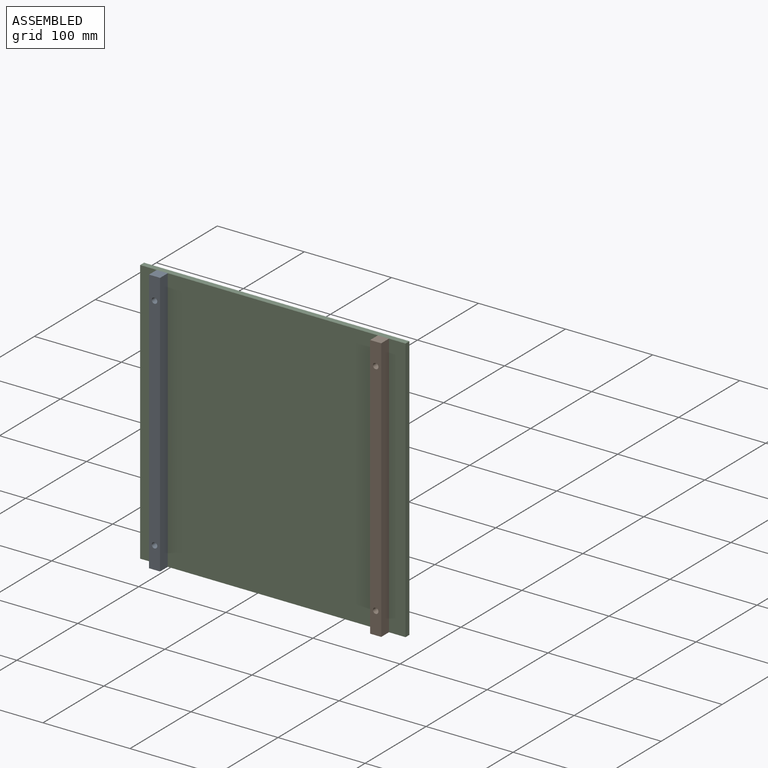
[diagram: assembled view]
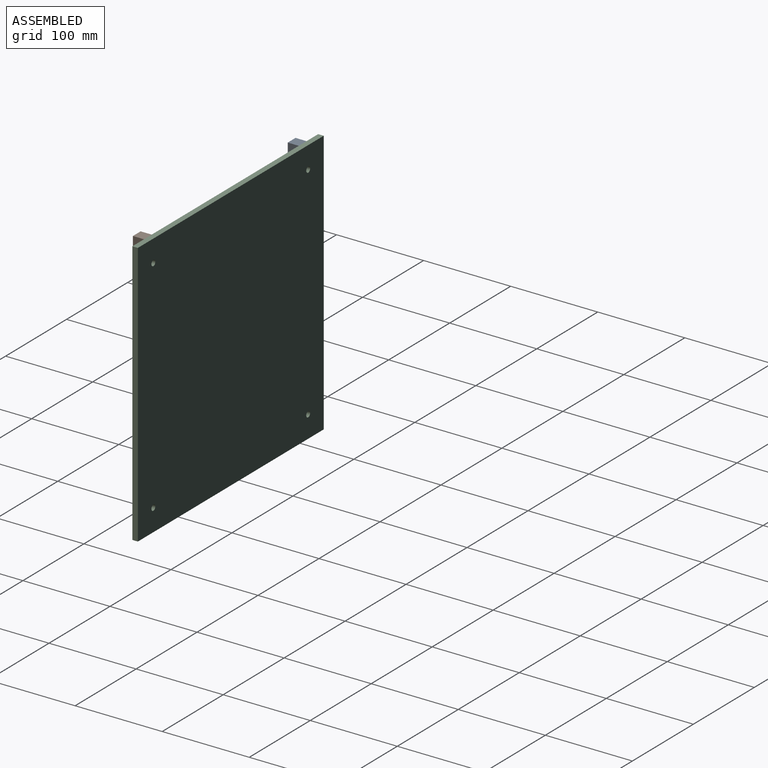
[diagram: assembled view, second angle]
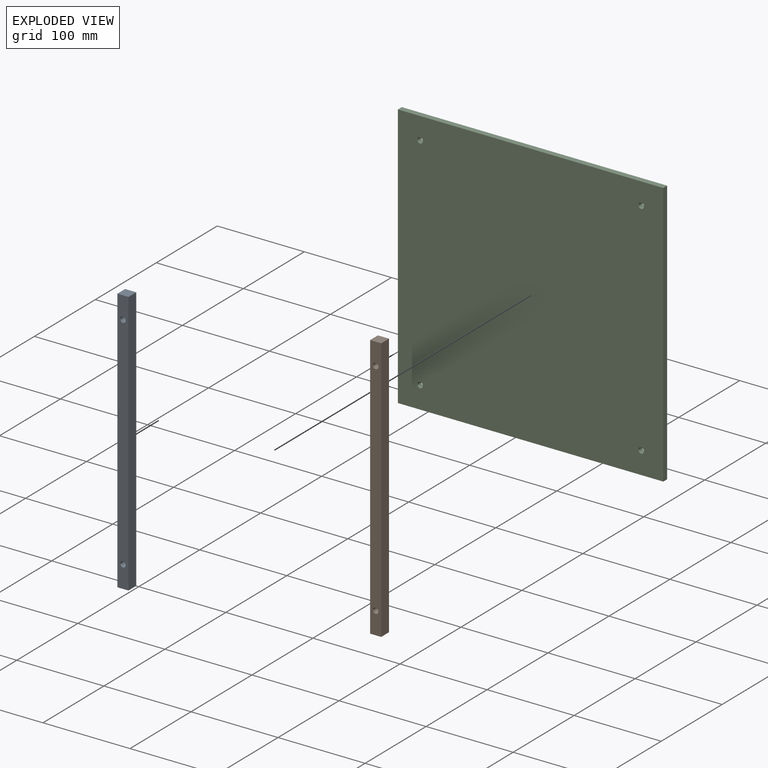
[diagram: exploded view]
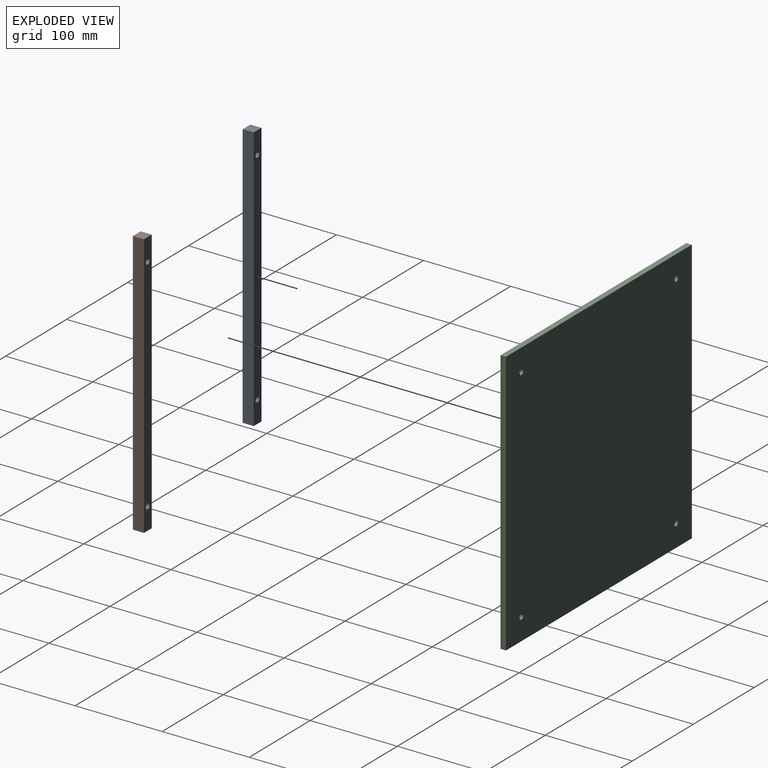
[diagram: exploded view, second angle]
ASSEMBLY  parts=3 mates=6
PART A: 8 faces, bbox 12.7x304.8x12.7 mm
  f0: plane 304.8x12.7mm, normal (0,0,1), area 3807.6mm2, adj f1,f3,f4,f5,f6,f7
  f1: plane 304.8x12.7mm, normal (-1,0,0), area 3871mm2, adj f0,f2,f4,f5
  f2: plane 304.8x12.7mm, normal (0,0,-1), area 3807.6mm2, adj f1,f3,f4,f5,f6,f7
  f3: plane 304.8x12.7mm, normal (1,0,0), area 3871mm2, adj f0,f2,f4,f5
  f4: plane 12.7x12.7mm, normal (0,-1,0), area 161.3mm2, adj f0,f1,f2,f3
  f5: plane 12.7x12.7mm, normal (0,1,0), area 161.3mm2, adj f0,f1,f2,f3
  f6: cylinder r=3.17mm len=12.7mm, axis (0,0,1), area 253.4mm2, adj f0,f2
  f7: cylinder r=3.17mm len=12.7mm, axis (0,0,1), area 253.4mm2, adj f0,f2
PART B: same geometry as A
PART C: 10 faces, bbox 304.8x6.4x304.8 mm
  f0: plane 304.8x6.35mm, normal (0,0,1), area 1935.5mm2, adj f1,f3,f4,f5
  f1: plane 304.8x6.35mm, normal (-1,0,0), area 1935.5mm2, adj f0,f2,f4,f5
  f2: plane 304.8x6.35mm, normal (0,0,-1), area 1935.5mm2, adj f1,f3,f4,f5
  f3: plane 304.8x6.35mm, normal (1,0,0), area 1935.5mm2, adj f0,f2,f4,f5
  f4: plane 304.8x304.8mm, normal (0,-1,0), area 92776.4mm2, adj f0,f1,f2,f3,f6,f7,f8,f9
  f5: plane 304.8x304.8mm, normal (0,1,0), area 92776.4mm2, adj f0,f1,f2,f3,f6,f7,f8,f9
  f6: cylinder r=3.17mm len=6.35mm, axis (0,-1,0), area 126.7mm2, adj f4,f5
  f7: cylinder r=3.17mm len=6.35mm, axis (0,-1,0), area 126.7mm2, adj f4,f5
  f8: cylinder r=3.17mm len=6.35mm, axis (0,-1,0), area 126.7mm2, adj f4,f5
  f9: cylinder r=3.17mm len=6.35mm, axis (0,-1,0), area 126.7mm2, adj f4,f5
PLACE A rot(axis=(0,-0.71,0.71),180deg) t=(-101.26,34.03,43.05)mm
PLACE B rot(axis=(-1,0,0),90deg) t=(152.74,34.03,43.05)mm
PLACE C t=(25.74,46.73,43.05)mm fixed
MATE cylindrical C.f9 <-> A.f7  axis (0,-1,0) through (-101.26,40.38,-83.95)mm
MATE planar C.f4 <-> A.f2  axis (0,-1,0) through (25.74,40.38,43.05)mm
MATE cylindrical C.f8 <-> B.f7  axis (0,-1,0) through (152.74,40.38,-83.95)mm
MATE cylindrical B.f6 <-> C.f7  axis (0,1,0) through (152.74,34.03,170.05)mm
MATE planar C.f4 <-> B.f0  axis (0,-1,0) through (25.74,40.38,43.05)mm
MATE cylindrical A.f6 <-> C.f6  axis (0,-1,0) through (-101.26,40.38,170.05)mm
